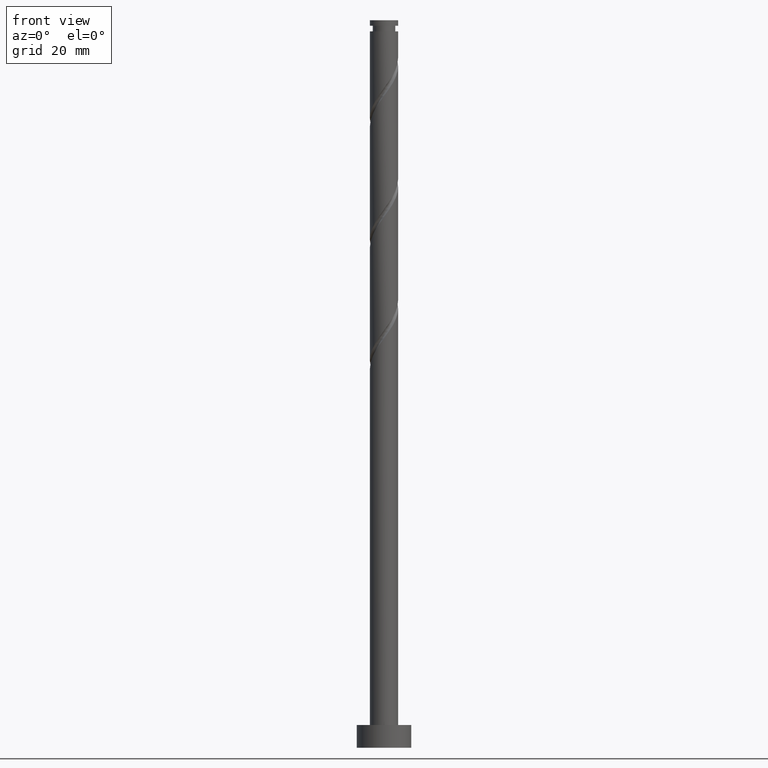
[diagram: clean part render]
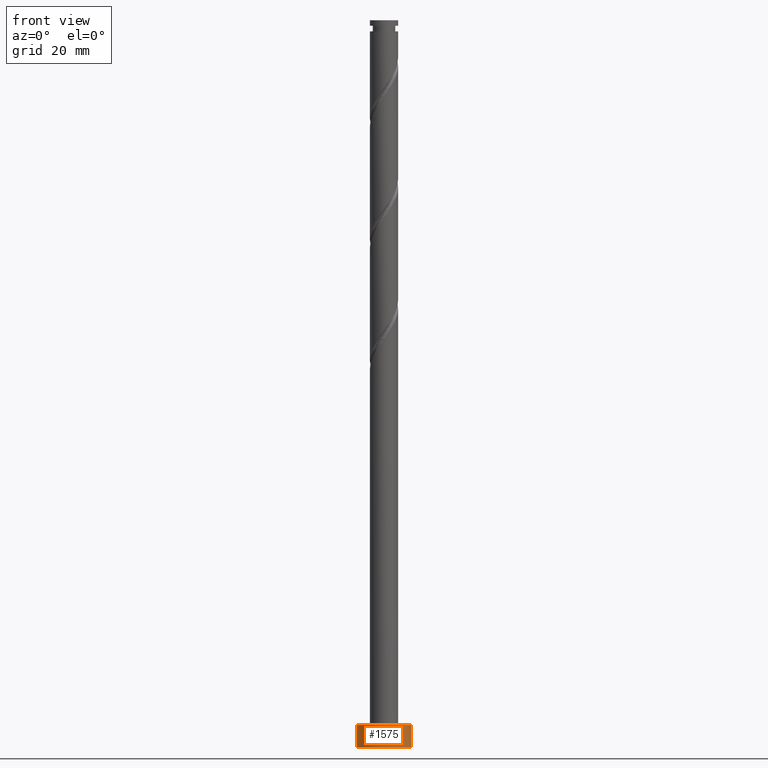
[diagram: same view with one face highlighted and labeled with its STEP entity id]
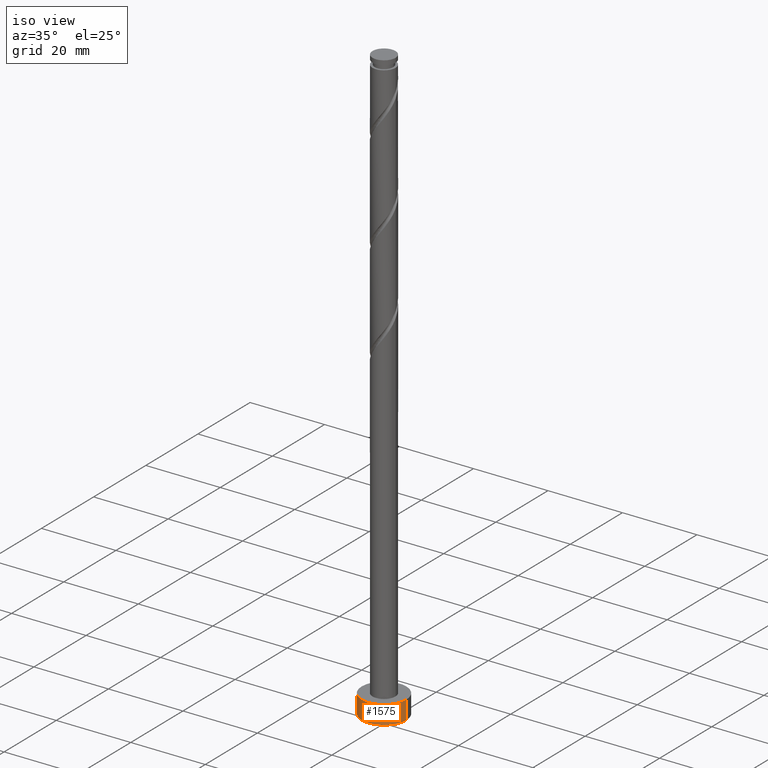
[diagram: same view with one face highlighted and labeled with its STEP entity id]
A machine part, front view. The second image highlights one B-rep face of the part: STEP entity #1575.
A second angle (iso view) of the same face is appended — the face is thin or edge-on in the first view.
In plain terms, the highlighted cylindrical surface (edge-blend (fillet) strip) has radius 6 mm, axis along (-0, -0, -1).
Its self-contained STEP definition (entity closure, byte-faithful):
#54 = AXIS2_PLACEMENT_3D ( 'NONE', #413, #567, #290 ) ;
#127 = VECTOR ( 'NONE', #1086, 1000.000000000000000 ) ;
#134 = CIRCLE ( 'NONE', #905, 6.000000000000000888 ) ;
#147 = CYLINDRICAL_SURFACE ( 'NONE', #54, 6.000000000000000888 ) ;
#168 = DIRECTION ( 'NONE',  ( 1.000000000000000000, 0.000000000000000000, 0.000000000000000000 ) ) ;
#208 = EDGE_CURVE ( 'NONE', #1228, #1137, #134, .T. ) ;
#218 = CARTESIAN_POINT ( 'NONE',  ( 6.000000000000000888, 7.347880794884120722E-16, 5.000000000000000000 ) ) ;
#228 = LINE ( 'NONE', #604, #1370 ) ;
#272 = FACE_OUTER_BOUND ( 'NONE', #275, .T. ) ;
#275 = EDGE_LOOP ( 'NONE', ( #1396, #1027, #578, #1124 ) ) ;
#290 = DIRECTION ( 'NONE',  ( -1.000000000000000000, 0.000000000000000000, 0.000000000000000000 ) ) ;
#386 = VERTEX_POINT ( 'NONE', #975 ) ;
#399 = EDGE_CURVE ( 'NONE', #1137, #1304, #584, .T. ) ;
#413 = CARTESIAN_POINT ( 'NONE',  ( 0.000000000000000000, 0.000000000000000000, 5.000000000000000000 ) ) ;
#567 = DIRECTION ( 'NONE',  ( -0.000000000000000000, -0.000000000000000000, -1.000000000000000000 ) ) ;
#578 = ORIENTED_EDGE ( 'NONE', *, *, #1661, .T. ) ;
#584 = LINE ( 'NONE', #1230, #127 ) ;
#604 = CARTESIAN_POINT ( 'NONE',  ( -6.000000000000000888, 0.000000000000000000, 5.000000000000000000 ) ) ;
#768 = CARTESIAN_POINT ( 'NONE',  ( -6.000000000000000888, 0.000000000000000000, 5.000000000000000000 ) ) ;
#771 = AXIS2_PLACEMENT_3D ( 'NONE', #1281, #781, #1519 ) ;
#781 = DIRECTION ( 'NONE',  ( 0.000000000000000000, 0.000000000000000000, 1.000000000000000000 ) ) ;
#846 = DIRECTION ( 'NONE',  ( 0.000000000000000000, 0.000000000000000000, 1.000000000000000000 ) ) ;
#905 = AXIS2_PLACEMENT_3D ( 'NONE', #1188, #846, #168 ) ;
#975 = CARTESIAN_POINT ( 'NONE',  ( -6.000000000000000888, 0.000000000000000000, 0.000000000000000000 ) ) ;
#1027 = ORIENTED_EDGE ( 'NONE', *, *, #208, .F. ) ;
#1086 = DIRECTION ( 'NONE',  ( -0.000000000000000000, -0.000000000000000000, -1.000000000000000000 ) ) ;
#1097 = DIRECTION ( 'NONE',  ( -0.000000000000000000, -0.000000000000000000, -1.000000000000000000 ) ) ;
#1124 = ORIENTED_EDGE ( 'NONE', *, *, #1333, .T. ) ;
#1137 = VERTEX_POINT ( 'NONE', #218 ) ;
#1188 = CARTESIAN_POINT ( 'NONE',  ( 0.000000000000000000, 0.000000000000000000, 5.000000000000000000 ) ) ;
#1228 = VERTEX_POINT ( 'NONE', #768 ) ;
#1230 = CARTESIAN_POINT ( 'NONE',  ( 6.000000000000000888, 7.347880794884120722E-16, 5.000000000000000000 ) ) ;
#1281 = CARTESIAN_POINT ( 'NONE',  ( 0.000000000000000000, 0.000000000000000000, 0.000000000000000000 ) ) ;
#1304 = VERTEX_POINT ( 'NONE', #1515 ) ;
#1323 = CIRCLE ( 'NONE', #771, 6.000000000000000888 ) ;
#1333 = EDGE_CURVE ( 'NONE', #386, #1304, #1323, .T. ) ;
#1370 = VECTOR ( 'NONE', #1097, 1000.000000000000000 ) ;
#1396 = ORIENTED_EDGE ( 'NONE', *, *, #399, .F. ) ;
#1515 = CARTESIAN_POINT ( 'NONE',  ( 6.000000000000000888, 7.347880794884120722E-16, 0.000000000000000000 ) ) ;
#1519 = DIRECTION ( 'NONE',  ( 1.000000000000000000, 0.000000000000000000, 0.000000000000000000 ) ) ;
#1575 = ADVANCED_FACE ( 'NONE', ( #272 ), #147, .T. ) ;
#1661 = EDGE_CURVE ( 'NONE', #1228, #386, #228, .T. ) ;